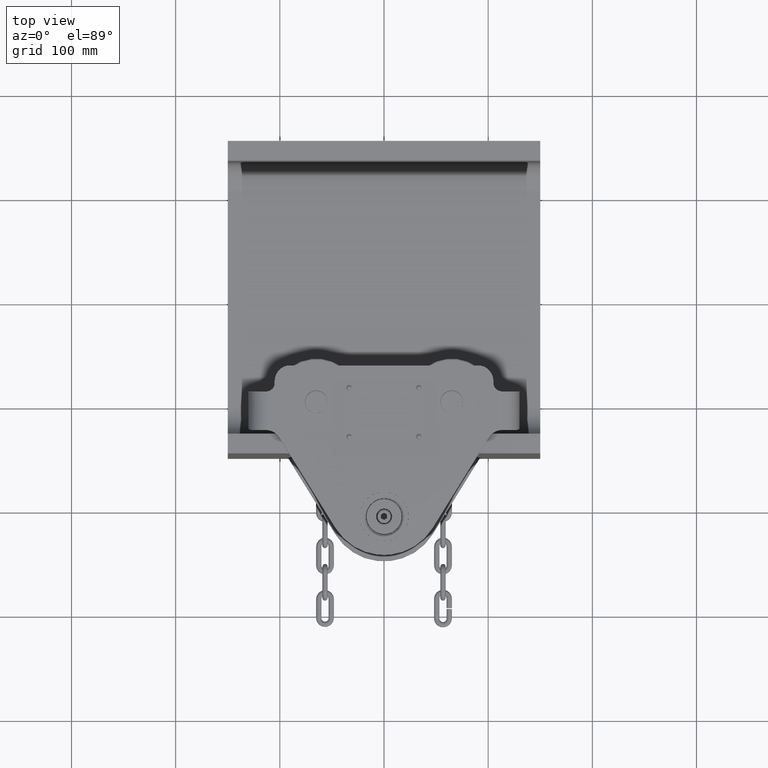
[diagram: clean part render]
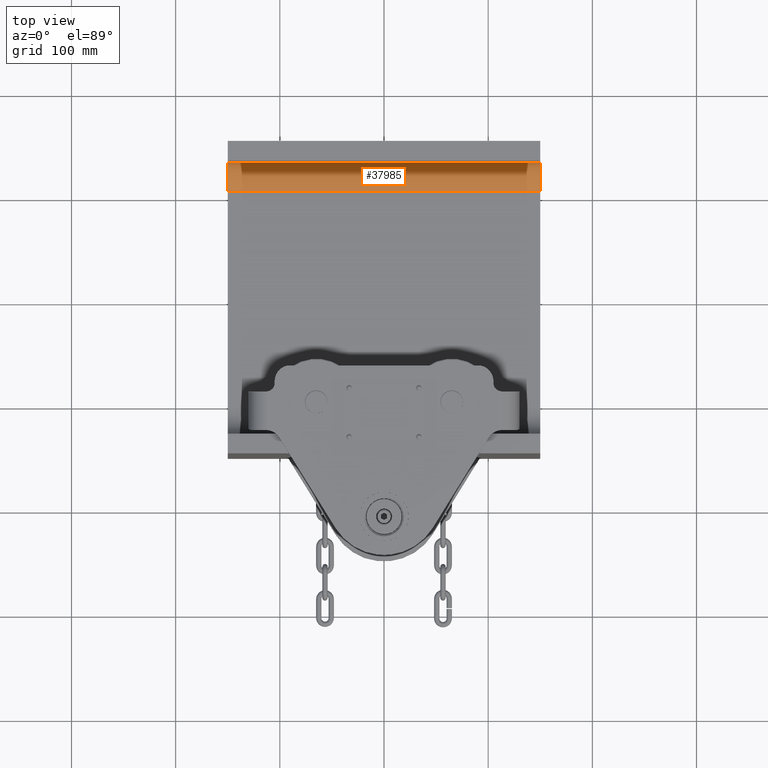
[diagram: same view with one face highlighted and labeled with its STEP entity id]
A machine part, top view. The second image highlights one B-rep face of the part: STEP entity #37985.
In plain terms, the highlighted cylindrical surface (edge-blend (fillet) strip) has radius 27 mm, axis along (-1, 0, 0).
Its self-contained STEP definition (entity closure, byte-faithful):
#134 = CARTESIAN_POINT ( 'NONE',  ( -149.9999999999999100, 104.0000000000012400, 32.50000000000226000 ) ) ;
#532 = EDGE_LOOP ( 'NONE', ( #5262, #39235, #37176, #41495 ) ) ;
#2107 = DIRECTION ( 'NONE',  ( -1.000000000000000000, 2.645435875969847300E-017, 3.677613769070833000E-016 ) ) ;
#3458 = DIRECTION ( 'NONE',  ( -1.000000000000000000, 2.645435875969847300E-017, 3.677613769070833000E-016 ) ) ;
#4138 = EDGE_CURVE ( 'NONE', #7307, #31621, #43775, .T. ) ;
#4399 = VERTEX_POINT ( 'NONE', #20901 ) ;
#5150 = LINE ( 'NONE', #13521, #26189 ) ;
#5262 = ORIENTED_EDGE ( 'NONE', *, *, #51492, .T. ) ;
#6487 = AXIS2_PLACEMENT_3D ( 'NONE', #28402, #3458, #28756 ) ;
#7307 = VERTEX_POINT ( 'NONE', #21465 ) ;
#10109 = DIRECTION ( 'NONE',  ( 0.0000000000000000000, 4.111937128241323000E-015, 1.000000000000000000 ) ) ;
#10659 = CARTESIAN_POINT ( 'NONE',  ( 150.0000000000000000, 104.0000000000012400, 32.50000000000215300 ) ) ;
#11435 = CIRCLE ( 'NONE', #29757, 26.99999999999998200 ) ;
#13521 = CARTESIAN_POINT ( 'NONE',  ( 150.0000000000000000, 104.0000000000010700, 5.500000000002148500 ) ) ;
#20901 = CARTESIAN_POINT ( 'NONE',  ( -150.0000000000000000, 104.0000000000010700, 5.500000000002257700 ) ) ;
#21456 = VECTOR ( 'NONE', #53315, 1000.000000000000000 ) ;
#21465 = CARTESIAN_POINT ( 'NONE',  ( 150.0000000000000000, 131.0000000000011900, 32.50000000000201800 ) ) ;
#22569 = DIRECTION ( 'NONE',  ( -1.000000000000000000, 2.645435875969847300E-017, 3.677613769070833000E-016 ) ) ;
#26189 = VECTOR ( 'NONE', #22569, 1000.000000000000000 ) ;
#26827 = CARTESIAN_POINT ( 'NONE',  ( -149.9999999999999100, 131.0000000000011900, 32.50000000000212500 ) ) ;
#28402 = CARTESIAN_POINT ( 'NONE',  ( 150.0000000000000000, 104.0000000000012400, 32.50000000000215300 ) ) ;
#28756 = DIRECTION ( 'NONE',  ( 0.0000000000000000000, 4.111937128241323000E-015, 1.000000000000000000 ) ) ;
#28763 = DIRECTION ( 'NONE',  ( 0.0000000000000000000, 4.111937128241323000E-015, 1.000000000000000000 ) ) ;
#29138 = DIRECTION ( 'NONE',  ( -1.000000000000000000, 2.645435875969847300E-017, 3.677613769070833000E-016 ) ) ;
#29757 = AXIS2_PLACEMENT_3D ( 'NONE', #10659, #2107, #10109 ) ;
#30980 = AXIS2_PLACEMENT_3D ( 'NONE', #134, #29138, #28763 ) ;
#31621 = VERTEX_POINT ( 'NONE', #26827 ) ;
#32518 = EDGE_CURVE ( 'NONE', #7307, #53201, #11435, .T. ) ;
#37176 = ORIENTED_EDGE ( 'NONE', *, *, #32518, .F. ) ;
#37985 = ADVANCED_FACE ( 'NONE', ( #51651 ), #52310, .F. ) ;
#39235 = ORIENTED_EDGE ( 'NONE', *, *, #47366, .F. ) ;
#41495 = ORIENTED_EDGE ( 'NONE', *, *, #4138, .T. ) ;
#42327 = CIRCLE ( 'NONE', #30980, 26.99999999999998200 ) ;
#43775 = LINE ( 'NONE', #44903, #21456 ) ;
#44903 = CARTESIAN_POINT ( 'NONE',  ( 150.0000000000000000, 131.0000000000011900, 32.50000000000201800 ) ) ;
#46098 = CARTESIAN_POINT ( 'NONE',  ( 150.0000000000000000, 104.0000000000010700, 5.500000000002148500 ) ) ;
#47366 = EDGE_CURVE ( 'NONE', #53201, #4399, #5150, .T. ) ;
#51492 = EDGE_CURVE ( 'NONE', #31621, #4399, #42327, .T. ) ;
#51651 = FACE_OUTER_BOUND ( 'NONE', #532, .T. ) ;
#52310 = CYLINDRICAL_SURFACE ( 'NONE', #6487, 26.99999999999998200 ) ;
#53201 = VERTEX_POINT ( 'NONE', #46098 ) ;
#53315 = DIRECTION ( 'NONE',  ( -1.000000000000000000, 2.645435875969847300E-017, 3.677613769070833000E-016 ) ) ;